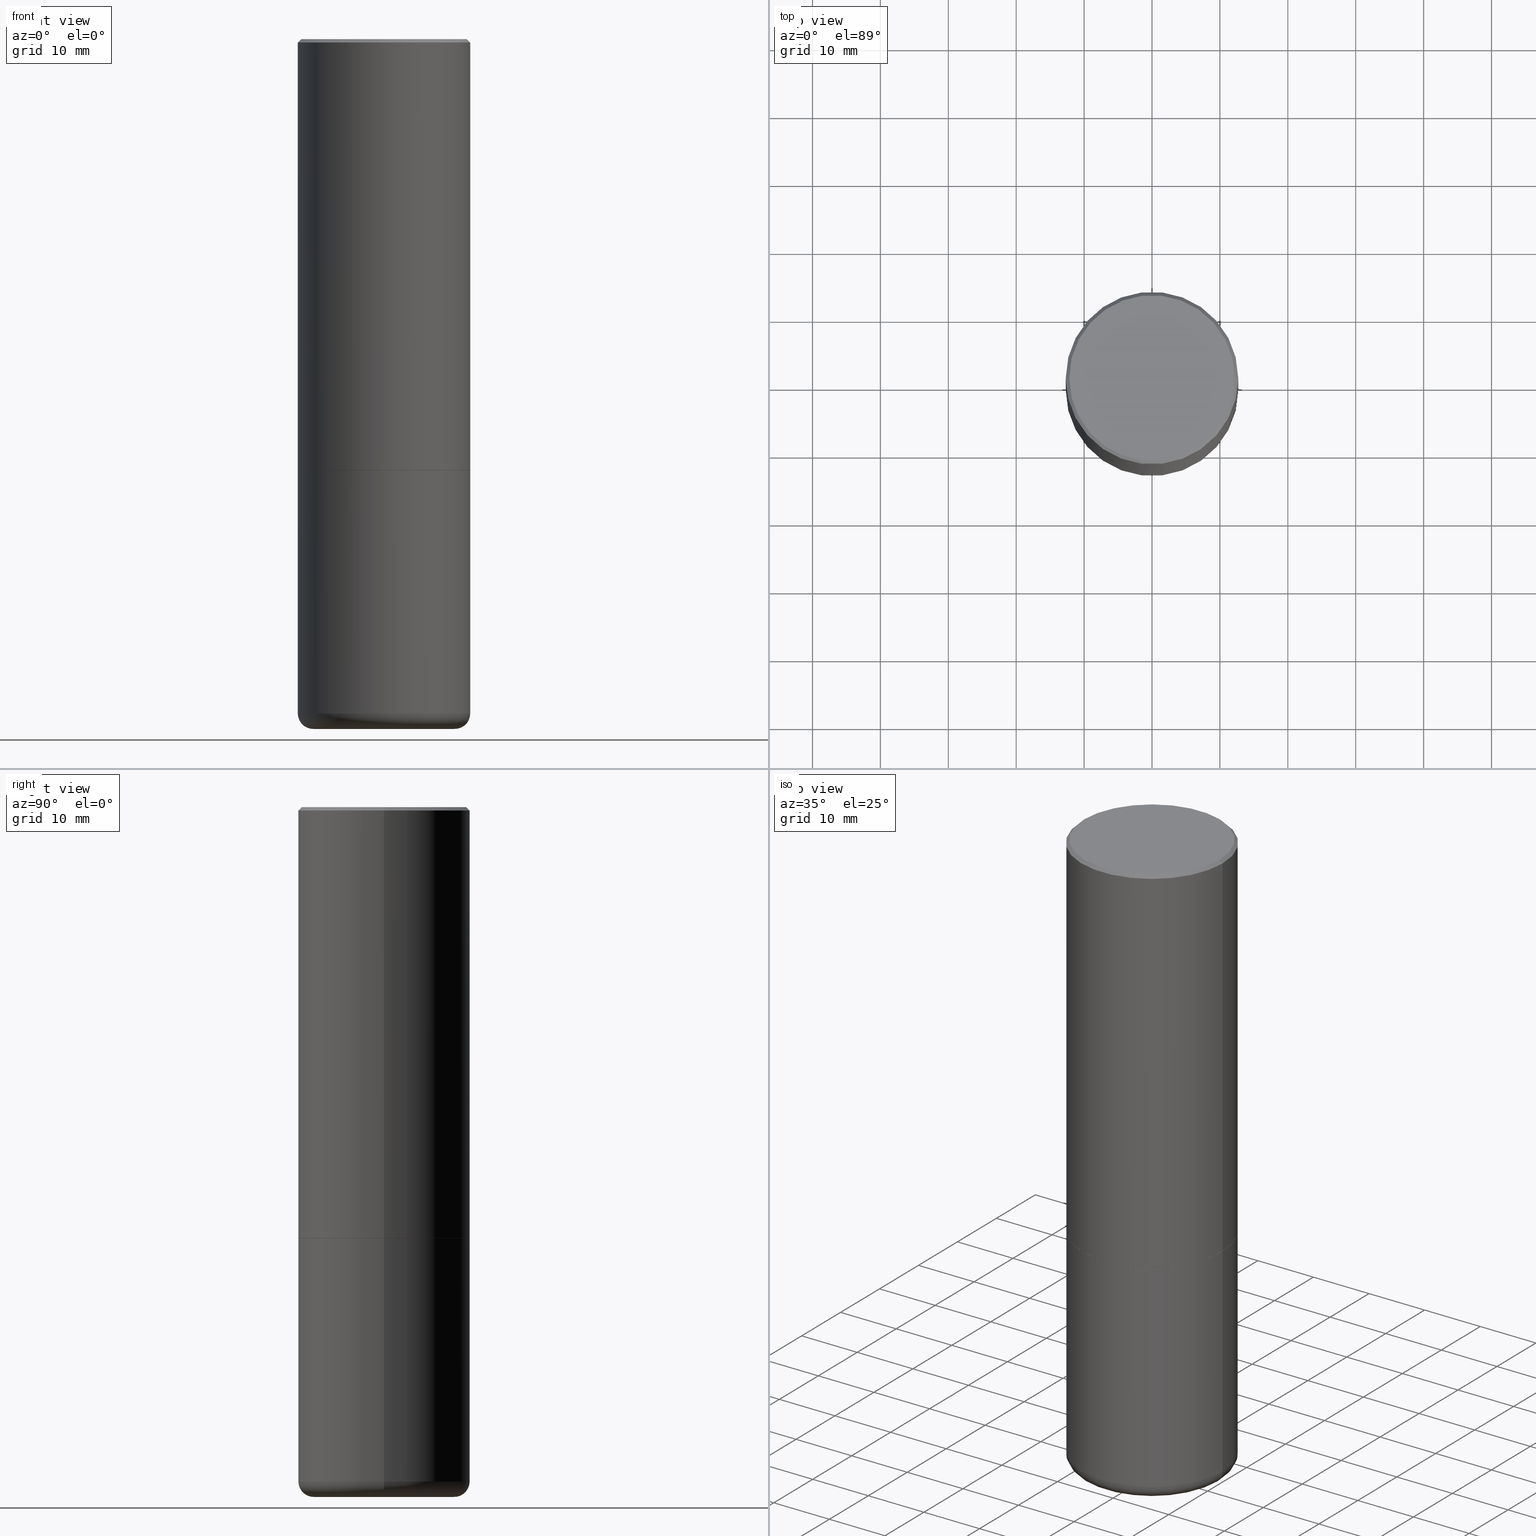
[diagram: canonical four-view strip — front | top / right | iso, engineering-drawing reading convention]
A machine part, canonical four-view strip (front | top / right | iso — engineering-drawing reading convention). The complete STEP part file that produces these views, byte-faithful:
ISO-10303-21;
HEADER;
FILE_DESCRIPTION (( 'STEP AP203' ),
    '1' );
FILE_NAME ('38112.STEP',
    '2023-03-22T20:19:09',
    ( '' ),
    ( '' ),
    'SwSTEP 2.0',
    'SolidWorks 2022',
    '' );
FILE_SCHEMA (( 'CONFIG_CONTROL_DESIGN' ));
ENDSEC;

DATA;
#1 = CARTESIAN_POINT ( 'NONE',  ( -0.5000000000000000000, -7.637699335114127230E-15, -2.500000000000000000 ) ) ;
#2 = AXIS2_PLACEMENT_3D ( 'NONE', #208, #34, #345 ) ;
#3 = AXIS2_PLACEMENT_3D ( 'NONE', #317, #252, #11 ) ;
#4 = CC_DESIGN_PERSON_AND_ORGANIZATION_ASSIGNMENT ( #370, #191, ( #315 ) ) ;
#5 = VERTEX_POINT ( 'NONE', #388 ) ;
#6 = FACE_OUTER_BOUND ( 'NONE', #436, .T. ) ;
#7 = APPROVAL_DATE_TIME ( #283, #353 ) ;
#8 = CARTESIAN_POINT ( 'NONE',  ( 9.562084660884571289E-29, -1.365212268072139138E-14, -3.910123341872087988 ) ) ;
#9 = DIRECTION ( 'NONE',  ( 1.000000000000000000, -6.982962677686269077E-15, 0.000000000000000000 ) ) ;
#10 = DIRECTION ( 'NONE',  ( 1.000000000000000000, -6.982962677686266711E-15, 0.000000000000000000 ) ) ;
#11 = DIRECTION ( 'NONE',  ( -1.000000000000000000, 6.982962677686266711E-15, 0.000000000000000000 ) ) ;
#12 = EDGE_CURVE ( 'NONE', #96, #136, #190, .T. ) ;
#13 = CARTESIAN_POINT ( 'NONE',  ( 6.111226546656657010E-29, -8.725211865769021935E-15, -2.499000000000000110 ) ) ;
#14 = CIRCLE ( 'NONE', #261, 0.4989999999999999991 ) ;
#15 = LINE ( 'NONE', #431, #335 ) ;
#16 = CC_DESIGN_APPROVAL ( #353, ( #230 ) ) ;
#17 = CARTESIAN_POINT ( 'NONE',  ( 4.890937612370278413E-31, -6.982962677686297772E-17, -0.02000000000000002123 ) ) ;
#18 =( NAMED_UNIT ( * ) SI_UNIT ( $, .STERADIAN. ) SOLID_ANGLE_UNIT ( ) );
#19 = DIRECTION ( 'NONE',  ( -2.445468806185136597E-29, 3.491481338843145583E-15, 1.000000000000000000 ) ) ;
#20 = FACE_OUTER_BOUND ( 'NONE', #248, .T. ) ;
#21 = ORIENTED_EDGE ( 'NONE', *, *, #428, .F. ) ;
#22 = DIRECTION ( 'NONE',  ( -2.445468806185136597E-29, 3.491481338843145583E-15, 1.000000000000000000 ) ) ;
#23 = DIRECTION ( 'NONE',  ( -1.000000000000000000, 7.105427357600990815E-15, 0.000000000000000000 ) ) ;
#24 = ORIENTED_EDGE ( 'NONE', *, *, #12, .T. ) ;
#25 = AXIS2_PLACEMENT_3D ( 'NONE', #374, #264, #407 ) ;
#26 = CONICAL_SURFACE ( 'NONE', #3, 0.4999999999999996669, 0.7853981633974472798 ) ;
#27 = LOCAL_TIME ( 16, 19, 9.000000000000000000, #56 ) ;
#28 = PERSON_AND_ORGANIZATION ( #237, #88 ) ;
#29 = ORIENTED_EDGE ( 'NONE', *, *, #234, .T. ) ;
#30 = CARTESIAN_POINT ( 'NONE',  ( -0.4999999999999996669, 3.421651712066268085E-15, -0.02000000000000002123 ) ) ;
#31 = ORIENTED_EDGE ( 'NONE', *, *, #58, .T. ) ;
#32 = DIRECTION ( 'NONE',  ( -1.000000000000000000, 6.982962677686265922E-15, -4.876176775795935793E-29 ) ) ;
#33 = APPROVAL_PERSON_ORGANIZATION ( #28, #353, #304 ) ;
#34 = DIRECTION ( 'NONE',  ( -2.445468806185136597E-29, 3.491481338843145583E-15, 1.000000000000000000 ) ) ;
#35 = ORIENTED_EDGE ( 'NONE', *, *, #299, .T. ) ;
#36 = LINE ( 'NONE', #78, #86 ) ;
#37 = DIRECTION ( 'NONE',  ( 2.445468806185136597E-29, -3.491481338843145583E-15, -1.000000000000000000 ) ) ;
#38 = ORIENTED_EDGE ( 'NONE', *, *, #177, .T. ) ;
#39 = PERSON_AND_ORGANIZATION_ROLE ( 'creator' ) ;
#40 = ORIENTED_EDGE ( 'NONE', *, *, #130, .T. ) ;
#41 = CARTESIAN_POINT ( 'NONE',  ( 9.562084660884571289E-29, -1.365212268072139138E-14, -3.910123341872087988 ) ) ;
#42 = ORIENTED_EDGE ( 'NONE', *, *, #114, .F. ) ;
#43 = FACE_OUTER_BOUND ( 'NONE', #420, .T. ) ;
#44 = CARTESIAN_POINT ( 'NONE',  ( 6.113672015462842613E-29, -8.728703347107866520E-15, -2.500000000000000444 ) ) ;
#45 = APPROVAL_PERSON_ORGANIZATION ( #396, #119, #53 ) ;
#46 = AXIS2_PLACEMENT_3D ( 'NONE', #401, #50, #23 ) ;
#47 = CARTESIAN_POINT ( 'NONE',  ( -0.4999999999999998335, 3.552713678800499746E-15, -2.459467545127452330E-29 ) ) ;
#48 = CIRCLE ( 'NONE', #290, 0.5000000000000000000 ) ;
#49 = ADVANCED_FACE ( 'NONE', ( #286 ), #26, .T. ) ;
#50 = DIRECTION ( 'NONE',  ( 7.105427357601001859E-15, 1.000000000000000000, -3.491481338843145583E-15 ) ) ;
#51 = DIRECTION ( 'NONE',  ( 1.000000000000000000, -6.982962677686266711E-15, 4.876176775795935793E-29 ) ) ;
#52 = FACE_OUTER_BOUND ( 'NONE', #55, .T. ) ;
#53 = APPROVAL_ROLE ( '' ) ;
#54 = AXIS2_PLACEMENT_3D ( 'NONE', #325, #360, #399 ) ;
#55 = EDGE_LOOP ( 'NONE', ( #288, #145 ) ) ;
#56 = COORDINATED_UNIVERSAL_TIME_OFFSET ( 5, 0, .BEHIND. ) ;
#57 = DIRECTION ( 'NONE',  ( -2.445468806185136597E-29, 3.491481338843145583E-15, 1.000000000000000000 ) ) ;
#58 = EDGE_CURVE ( 'NONE', #350, #138, #15, .T. ) ;
#59 = AXIS2_PLACEMENT_3D ( 'NONE', #225, #358, #366 ) ;
#60 = ORIENTED_EDGE ( 'NONE', *, *, #428, .T. ) ;
#61 = AXIS2_PLACEMENT_3D ( 'NONE', #174, #354, #255 ) ;
#62 = EDGE_CURVE ( 'NONE', #279, #141, #245, .T. ) ;
#63 = ADVANCED_BREP_SHAPE_REPRESENTATION ( '38112', ( #268, #424, #127 ), #369 ) ;
#64 = ORIENTED_EDGE ( 'NONE', *, *, #209, .T. ) ;
#65 = COORDINATED_UNIVERSAL_TIME_OFFSET ( 5, 0, .BEHIND. ) ;
#66 = CARTESIAN_POINT ( 'NONE',  ( 9.781875224740545266E-29, -1.396592535537258075E-14, -3.999999999999999556 ) ) ;
#67 = FACE_OUTER_BOUND ( 'NONE', #236, .T. ) ;
#68 = AXIS2_PLACEMENT_3D ( 'NONE', #17, #80, #149 ) ;
#69 = DIRECTION ( 'NONE',  ( -2.445468806185136597E-29, 3.491481338843145583E-15, 1.000000000000000000 ) ) ;
#70 = CLOSED_SHELL ( 'NONE', ( #143, #327, #340, #244, #267, #438, #146 ) ) ;
#71 = CIRCLE ( 'NONE', #300, 0.4052897639381357053 ) ;
#72 = PRODUCT_RELATED_PRODUCT_CATEGORY ( 'detail', '', ( #315 ) ) ;
#73 = CYLINDRICAL_SURFACE ( 'NONE', #2, 0.4999999999999998335 ) ;
#74 = DIRECTION ( 'NONE',  ( 1.000000000000000000, -6.982962677686266711E-15, 4.883557194083113462E-29 ) ) ;
#75 = EDGE_CURVE ( 'NONE', #138, #427, #301, .T. ) ;
#76 = ORIENTED_EDGE ( 'NONE', *, *, #103, .T. ) ;
#77 = EDGE_LOOP ( 'NONE', ( #291, #418, #228, #21 ) ) ;
#78 = CARTESIAN_POINT ( 'NONE',  ( 2.116410433118042117E-18, -1.389176511687253156E-14, -3.978759663505856636 ) ) ;
#79 = FACE_OUTER_BOUND ( 'NONE', #160, .T. ) ;
#80 = DIRECTION ( 'NONE',  ( -2.445468806185136597E-29, 3.491481338843145583E-15, 1.000000000000000000 ) ) ;
#81 = ADVANCED_FACE ( 'NONE', ( #52 ), #95, .F. ) ;
#82 = VERTEX_POINT ( 'NONE', #192 ) ;
#83 = COORDINATED_UNIVERSAL_TIME_OFFSET ( 5, 0, .BEHIND. ) ;
#84 = EDGE_CURVE ( 'NONE', #392, #427, #154, .T. ) ;
#85 = CYLINDRICAL_SURFACE ( 'NONE', #257, 0.5000000000000000000 ) ;
#86 = VECTOR ( 'NONE', #312, 39.37007874015748143 ) ;
#87 = DIRECTION ( 'NONE',  ( 0.7071067811864267805, -2.468850131080992517E-15, 0.7071067811866682540 ) ) ;
#88 = ORGANIZATION ( 'UNSPECIFIED', 'UNSPECIFIED', '' ) ;
#89 = PLANE ( 'NONE',  #59 ) ;
#90 = DIRECTION ( 'NONE',  ( -0.7071067811865467956, 2.468850131082249172E-15, -0.7071067811865482389 ) ) ;
#91 = ADVANCED_FACE ( 'NONE', ( #20 ), #363, .T. ) ;
#92 = PRODUCT_DEFINITION_SHAPE ( 'NONE', 'NONE',  #164 ) ;
#93 = VERTEX_POINT ( 'NONE', #199 ) ;
#94 = CARTESIAN_POINT ( 'NONE',  ( 0.000000000000000000, 0.000000000000000000, 0.000000000000000000 ) ) ;
#95 = PLANE ( 'NONE',  #259 ) ;
#96 = VERTEX_POINT ( 'NONE', #349 ) ;
#97 = CIRCLE ( 'NONE', #323, 0.5000000000000000000 ) ;
#98 = APPROVAL_DATE_TIME ( #404, #111 ) ;
#99 = PERSON_AND_ORGANIZATION_ROLE ( 'creator' ) ;
#100 = CLOSED_SHELL ( 'NONE', ( #91, #250, #227, #49, #256, #226, #81, #280 ) ) ;
#101 = CARTESIAN_POINT ( 'NONE',  ( 3.491481338843194098E-15, 0.4999999999999912292, -2.500000000000001776 ) ) ;
#102 = LINE ( 'NONE', #270, #405 ) ;
#103 = EDGE_CURVE ( 'NONE', #232, #376, #383, .T. ) ;
#104 = PLANE ( 'NONE',  #156 ) ;
#105 = CC_DESIGN_APPROVAL ( #119, ( #164 ) ) ;
#106 = DIRECTION ( 'NONE',  ( 1.000000000000000000, -6.982962677686265133E-15, 0.000000000000000000 ) ) ;
#107 = VECTOR ( 'NONE', #90, 39.37007874015748143 ) ;
#108 = CIRCLE ( 'NONE', #206, 0.4989999999999999991 ) ;
#109 = EDGE_LOOP ( 'NONE', ( #155, #359, #214, #254 ) ) ;
#110 = ORIENTED_EDGE ( 'NONE', *, *, #239, .T. ) ;
#111 = APPROVAL ( #262, 'UNSPECIFIED' ) ;
#112 = CARTESIAN_POINT ( 'NONE',  ( 0.4999999999999996669, -3.500078625662626318E-15, -0.02000000000000002123 ) ) ;
#113 = ORIENTED_EDGE ( 'NONE', *, *, #84, .F. ) ;
#114 = EDGE_CURVE ( 'NONE', #166, #93, #249, .T. ) ;
#115 = MECHANICAL_CONTEXT ( 'NONE', #389, 'mechanical' ) ;
#116 = CARTESIAN_POINT ( 'NONE',  ( 0.4099999999999999756, -1.651513737857276136E-14, -3.910123341872087988 ) ) ;
#117 = CARTESIAN_POINT ( 'NONE',  ( -3.131554243005659264E-46, 4.471029511141341874E-32, 1.280553747030123384E-17 ) ) ;
#118 = APPLICATION_PROTOCOL_DEFINITION ( 'international standard', 'config_control_design', 1994, #289 ) ;
#119 = APPROVAL ( #328, 'UNSPECIFIED' ) ;
#120 = CIRCLE ( 'NONE', #180, 0.4052897639381357053 ) ;
#121 = APPROVAL_DATE_TIME ( #150, #119 ) ;
#122 = DIRECTION ( 'NONE',  ( -2.445468806185136597E-29, 3.491481338843145583E-15, 1.000000000000000000 ) ) ;
#123 = CONICAL_SURFACE ( 'NONE', #61, 751.2258538476644389, 1.518436449235073482 ) ;
#124 = FACE_OUTER_BOUND ( 'NONE', #442, .T. ) ;
#125 = DIRECTION ( 'NONE',  ( -2.445468806185136597E-29, 3.491481338843145583E-15, 1.000000000000000000 ) ) ;
#126 = CALENDAR_DATE ( 2023, 22, 3 ) ;
#127 = AXIS2_PLACEMENT_3D ( 'NONE', #94, #320, #219 ) ;
#128 = DIRECTION ( 'NONE',  ( 1.000000000000000000, -6.982962677686269077E-15, 0.000000000000000000 ) ) ;
#129 = AXIS2_PLACEMENT_3D ( 'NONE', #380, #69, #347 ) ;
#130 = EDGE_CURVE ( 'NONE', #266, #96, #36, .T. ) ;
#131 = COORDINATED_UNIVERSAL_TIME_OFFSET ( 5, 0, .BEHIND. ) ;
#132 = ORIENTED_EDGE ( 'NONE', *, *, #75, .F. ) ;
#133 = CARTESIAN_POINT ( 'NONE',  ( 0.5000000000000000000, -3.491481338843133355E-15, 2.438088387897967896E-29 ) ) ;
#134 = CIRCLE ( 'NONE', #163, 0.5000000000000000000 ) ;
#135 = DIRECTION ( 'NONE',  ( -2.445468806185136877E-29, 3.491481338843145188E-15, 1.000000000000000000 ) ) ;
#136 = VERTEX_POINT ( 'NONE', #377 ) ;
#137 = FACE_OUTER_BOUND ( 'NONE', #240, .T. ) ;
#138 = VERTEX_POINT ( 'NONE', #308 ) ;
#139 = ORIENTED_EDGE ( 'NONE', *, *, #253, .F. ) ;
#140 = CC_DESIGN_APPROVAL ( #111, ( #362 ) ) ;
#141 = VERTEX_POINT ( 'NONE', #275 ) ;
#142 = ORIENTED_EDGE ( 'NONE', *, *, #299, .F. ) ;
#143 = ADVANCED_FACE ( 'NONE', ( #67 ), #123, .F. ) ;
#144 = DIRECTION ( 'NONE',  ( -2.445468806185136597E-29, 3.491481338843145583E-15, 1.000000000000000000 ) ) ;
#145 = ORIENTED_EDGE ( 'NONE', *, *, #417, .F. ) ;
#146 = ADVANCED_FACE ( 'NONE', ( #43 ), #430, .F. ) ;
#147 = AXIS2_PLACEMENT_3D ( 'NONE', #400, #125, #406 ) ;
#148 = TOROIDAL_SURFACE ( 'NONE', #322, 0.4099999999999999756, 0.08999999999999998279 ) ;
#149 = DIRECTION ( 'NONE',  ( 1.000000000000000000, -6.982962677686266711E-15, 0.000000000000000000 ) ) ;
#150 = DATE_AND_TIME ( #221, #165 ) ;
#151 = CARTESIAN_POINT ( 'NONE',  ( 6.113672015462842613E-29, -8.728703347107866520E-15, -2.500000000000000444 ) ) ;
#152 = AXIS2_PLACEMENT_3D ( 'NONE', #151, #218, #329 ) ;
#153 = PERSON_AND_ORGANIZATION_ROLE ( 'classification_officer' ) ;
#154 = LINE ( 'NONE', #429, #107 ) ;
#155 = ORIENTED_EDGE ( 'NONE', *, *, #209, .F. ) ;
#156 = AXIS2_PLACEMENT_3D ( 'NONE', #101, #378, #32 ) ;
#157 = VECTOR ( 'NONE', #135, 39.37007874015748143 ) ;
#158 = APPROVAL_STATUS ( 'not_yet_approved' ) ;
#159 = CC_DESIGN_DATE_AND_TIME_ASSIGNMENT ( #337, #201, ( #362 ) ) ;
#160 = EDGE_LOOP ( 'NONE', ( #178, #64, #385, #113 ) ) ;
#161 = CARTESIAN_POINT ( 'NONE',  ( 9.781875224740545266E-29, -1.396592535537258075E-14, -3.999999999999999556 ) ) ;
#162 = DIRECTION ( 'NONE',  ( -0.7071067811864267805, 7.493145998869918709E-15, 0.7071067811866682540 ) ) ;
#163 = AXIS2_PLACEMENT_3D ( 'NONE', #41, #316, #10 ) ;
#164 = PRODUCT_DEFINITION ( 'UNKNOWN', '', #230, #379 ) ;
#165 = LOCAL_TIME ( 16, 19, 9.000000000000000000, #83 ) ;
#166 = VERTEX_POINT ( 'NONE', #397 ) ;
#167 = DIRECTION ( 'NONE',  ( -2.445468806185136597E-29, 3.491481338843145583E-15, 1.000000000000000000 ) ) ;
#168 = CALENDAR_DATE ( 2023, 22, 3 ) ;
#169 = EDGE_CURVE ( 'NONE', #136, #141, #134, .T. ) ;
#170 = ORIENTED_EDGE ( 'NONE', *, *, #12, .F. ) ;
#171 = CARTESIAN_POINT ( 'NONE',  ( -2.116410432923443459E-18, -1.389176511687253156E-14, -3.978759663505856636 ) ) ;
#172 = VECTOR ( 'NONE', #87, 39.37007874015748143 ) ;
#173 = ORIENTED_EDGE ( 'NONE', *, *, #393, .F. ) ;
#174 = CARTESIAN_POINT ( 'NONE',  ( 1.060082321005189927E-27, -1.513516603469176358E-13, -43.34883840366333629 ) ) ;
#175 = CARTESIAN_POINT ( 'NONE',  ( 9.562084660884571289E-29, -1.365212268072139138E-14, -3.910123341872087988 ) ) ;
#176 = EDGE_LOOP ( 'NONE', ( #204, #351, #24, #348 ) ) ;
#177 = EDGE_CURVE ( 'NONE', #82, #350, #318, .T. ) ;
#178 = ORIENTED_EDGE ( 'NONE', *, *, #408, .F. ) ;
#179 = CARTESIAN_POINT ( 'NONE',  ( 0.4989999999999999991, -1.221320172327331386E-14, -2.500000000000000444 ) ) ;
#180 = AXIS2_PLACEMENT_3D ( 'NONE', #161, #57, #128 ) ;
#181 = AXIS2_PLACEMENT_3D ( 'NONE', #117, #19, #394 ) ;
#182 = DIRECTION ( 'NONE',  ( 1.000000000000000000, -6.982962677686265922E-15, 4.876176775795935793E-29 ) ) ;
#183 = DIRECTION ( 'NONE',  ( -2.445468806185136597E-29, 3.491481338843145583E-15, 1.000000000000000000 ) ) ;
#184 =( CONVERSION_BASED_UNIT ( 'INCH', #294 ) LENGTH_UNIT ( ) NAMED_UNIT ( #330 ) );
#185 = DIRECTION ( 'NONE',  ( -2.445468806185136877E-29, 3.491481338843145188E-15, 1.000000000000000000 ) ) ;
#186 = PERSON_AND_ORGANIZATION ( #237, #88 ) ;
#187 = PERSON_AND_ORGANIZATION_ROLE ( 'design_supplier' ) ;
#188 = APPLICATION_PROTOCOL_DEFINITION ( 'international standard', 'config_control_design', 1994, #389 ) ;
#189 = CARTESIAN_POINT ( 'NONE',  ( 0.5000000000000000000, -1.221669320461215371E-14, -2.499000000000000110 ) ) ;
#190 = CIRCLE ( 'NONE', #355, 0.08999999999999999667 ) ;
#191 = PERSON_AND_ORGANIZATION_ROLE ( 'design_owner' ) ;
#192 = CARTESIAN_POINT ( 'NONE',  ( 0.4989999999999999991, -1.221320172327331386E-14, -2.500000000000000444 ) ) ;
#193 = SHAPE_DEFINITION_REPRESENTATION ( #92, #63 ) ;
#194 = CALENDAR_DATE ( 2023, 22, 3 ) ;
#195 = EDGE_CURVE ( 'NONE', #93, #427, #222, .T. ) ;
#196 = CIRCLE ( 'NONE', #68, 0.4999999999999996669 ) ;
#197 = ORIENTED_EDGE ( 'NONE', *, *, #273, .T. ) ;
#198 = CARTESIAN_POINT ( 'NONE',  ( -0.4799999999999996492, 3.386736898677836830E-15, 1.280553747027767124E-17 ) ) ;
#199 = CARTESIAN_POINT ( 'NONE',  ( -0.5000000000000000000, -8.448070674724403070E-16, -2.499000000000000110 ) ) ;
#200 = EDGE_LOOP ( 'NONE', ( #35, #251, #132, #311 ) ) ;
#201 = DATE_TIME_ROLE ( 'classification_date' ) ;
#202 = DIRECTION ( 'NONE',  ( 1.000000000000000000, -6.982962677686269077E-15, 0.000000000000000000 ) ) ;
#203 = CONICAL_SURFACE ( 'NONE', #381, 0.4999999999999996669, 0.7853981633974472798 ) ;
#204 = ORIENTED_EDGE ( 'NONE', *, *, #62, .F. ) ;
#205 = ORIENTED_EDGE ( 'NONE', *, *, #390, .F. ) ;
#206 = AXIS2_PLACEMENT_3D ( 'NONE', #306, #439, #233 ) ;
#207 = DIRECTION ( 'NONE',  ( 1.000000000000000000, -6.982962677686269077E-15, 0.000000000000000000 ) ) ;
#208 = CARTESIAN_POINT ( 'NONE',  ( 0.000000000000000000, 0.000000000000000000, 0.000000000000000000 ) ) ;
#209 = EDGE_CURVE ( 'NONE', #5, #138, #421, .T. ) ;
#210 = ORIENTED_EDGE ( 'NONE', *, *, #408, .T. ) ;
#211 = ORIENTED_EDGE ( 'NONE', *, *, #231, .T. ) ;
#212 = DIRECTION ( 'NONE',  ( 1.000000000000000000, -6.982962677686269077E-15, 0.000000000000000000 ) ) ;
#213 = CARTESIAN_POINT ( 'NONE',  ( 6.113672015462842613E-29, -8.728703347107864943E-15, -2.500000000000000000 ) ) ;
#214 = ORIENTED_EDGE ( 'NONE', *, *, #84, .T. ) ;
#215 = VECTOR ( 'NONE', #295, 39.37007874015748143 ) ;
#216 = ORIENTED_EDGE ( 'NONE', *, *, #417, .T. ) ;
#217 = CC_DESIGN_PERSON_AND_ORGANIZATION_ASSIGNMENT ( #260, #153, ( #362 ) ) ;
#218 = DIRECTION ( 'NONE',  ( -2.445468806185136597E-29, 3.491481338843145583E-15, 1.000000000000000000 ) ) ;
#219 = DIRECTION ( 'NONE',  ( 1.000000000000000000, 0.000000000000000000, 0.000000000000000000 ) ) ;
#220 = EDGE_LOOP ( 'NONE', ( #42, #216, #38, #414 ) ) ;
#221 = CALENDAR_DATE ( 2023, 22, 3 ) ;
#222 = LINE ( 'NONE', #47, #410 ) ;
#223 = CONICAL_SURFACE ( 'NONE', #384, 0.4989999999999999991, 0.7853981633972775267 ) ;
#224 = LOCAL_TIME ( 16, 19, 9.000000000000000000, #334 ) ;
#225 = CARTESIAN_POINT ( 'NONE',  ( 3.351822085289405181E-15, 0.4799999999999996492, -1.669508273909558064E-15 ) ) ;
#226 = ADVANCED_FACE ( 'NONE', ( #338 ), #223, .T. ) ;
#227 = ADVANCED_FACE ( 'NONE', ( #79 ), #203, .T. ) ;
#228 = ORIENTED_EDGE ( 'NONE', *, *, #231, .F. ) ;
#229 = CARTESIAN_POINT ( 'NONE',  ( 6.113672015462842613E-29, -8.728703347107864943E-15, -2.500000000000000000 ) ) ;
#230 = PRODUCT_DEFINITION_FORMATION_WITH_SPECIFIED_SOURCE ( 'ANY', '', #315, .NOT_KNOWN. ) ;
#231 = EDGE_CURVE ( 'NONE', #376, #232, #425, .T. ) ;
#232 = VERTEX_POINT ( 'NONE', #1 ) ;
#233 = DIRECTION ( 'NONE',  ( 1.000000000000000000, -6.982962677686266711E-15, 0.000000000000000000 ) ) ;
#234 = EDGE_CURVE ( 'NONE', #266, #279, #352, .T. ) ;
#235 = CARTESIAN_POINT ( 'NONE',  ( 6.113672015462842613E-29, -8.728703347107866520E-15, -2.500000000000000444 ) ) ;
#236 = EDGE_LOOP ( 'NONE', ( #343, #40, #173 ) ) ;
#237 = PERSON ( 'UNSPECIFIED', 'UNSPECIFIED', 'UNSPECIFIED', ('UNSPECIFIED'), ('UNSPECIFIED'), ('UNSPECIFIED') ) ;
#238 = FACE_OUTER_BOUND ( 'NONE', #200, .T. ) ;
#239 = EDGE_CURVE ( 'NONE', #93, #350, #48, .T. ) ;
#240 = EDGE_LOOP ( 'NONE', ( #371, #110, #31, #395 ) ) ;
#241 = CARTESIAN_POINT ( 'NONE',  ( 6.113672015462842613E-29, -8.728703347107864943E-15, -2.500000000000000000 ) ) ;
#242 = CYLINDRICAL_SURFACE ( 'NONE', #129, 0.4999999999999998335 ) ;
#243 = UNCERTAINTY_MEASURE_WITH_UNIT (LENGTH_MEASURE( 1.000000000000000082E-05 ), #184, 'distance_accuracy_value', 'NONE');
#244 = ADVANCED_FACE ( 'NONE', ( #409 ), #104, .F. ) ;
#245 = CIRCLE ( 'NONE', #46, 0.08999999999999999667 ) ;
#246 = CIRCLE ( 'NONE', #25, 0.5000000000000000000 ) ;
#247 = CARTESIAN_POINT ( 'NONE',  ( 4.890937612370278413E-31, -6.982962677686297772E-17, -0.02000000000000002123 ) ) ;
#248 = EDGE_LOOP ( 'NONE', ( #197, #391, #142, #423 ) ) ;
#249 = LINE ( 'NONE', #387, #368 ) ;
#250 = ADVANCED_FACE ( 'NONE', ( #238 ), #73, .T. ) ;
#251 = ORIENTED_EDGE ( 'NONE', *, *, #195, .T. ) ;
#252 = DIRECTION ( 'NONE',  ( 2.445468806185136597E-29, -3.491481338843145583E-15, -1.000000000000000000 ) ) ;
#253 = EDGE_CURVE ( 'NONE', #96, #279, #71, .T. ) ;
#254 = ORIENTED_EDGE ( 'NONE', *, *, #297, .T. ) ;
#255 = DIRECTION ( 'NONE',  ( -1.000000000000000000, 6.982962677686265922E-15, 0.000000000000000000 ) ) ;
#256 = ADVANCED_FACE ( 'NONE', ( #137 ), #242, .T. ) ;
#257 = AXIS2_PLACEMENT_3D ( 'NONE', #326, #292, #296 ) ;
#258 = DIRECTION ( 'NONE',  ( 1.000000000000000000, -6.982962677686266711E-15, 0.000000000000000000 ) ) ;
#259 = AXIS2_PLACEMENT_3D ( 'NONE', #229, #293, #182 ) ;
#260 = PERSON_AND_ORGANIZATION ( #237, #88 ) ;
#261 = AXIS2_PLACEMENT_3D ( 'NONE', #44, #319, #258 ) ;
#262 = APPROVAL_STATUS ( 'not_yet_approved' ) ;
#263 = CC_DESIGN_PERSON_AND_ORGANIZATION_ASSIGNMENT ( #434, #187, ( #230 ) ) ;
#264 = DIRECTION ( 'NONE',  ( -2.445468806185136597E-29, 3.491481338843145583E-15, 1.000000000000000000 ) ) ;
#265 = AXIS2_PLACEMENT_3D ( 'NONE', #213, #276, #207 ) ;
#266 = VERTEX_POINT ( 'NONE', #419 ) ;
#267 = ADVANCED_FACE ( 'NONE', ( #6 ), #85, .T. ) ;
#268 = MANIFOLD_SOLID_BREP ( 'Body-Move/Copy2[1]', #70 ) ;
#269 = DATE_TIME_ROLE ( 'creation_date' ) ;
#270 = CARTESIAN_POINT ( 'NONE',  ( -0.5000000000000000000, 3.552713678800500929E-15, -2.459467545127452891E-29 ) ) ;
#271 = ORIENTED_EDGE ( 'NONE', *, *, #62, .T. ) ;
#272 = FACE_OUTER_BOUND ( 'NONE', #176, .T. ) ;
#273 = EDGE_CURVE ( 'NONE', #82, #166, #14, .T. ) ;
#274 = CALENDAR_DATE ( 2023, 22, 3 ) ;
#275 = CARTESIAN_POINT ( 'NONE',  ( -0.5000000000000000000, -7.637699335114127230E-15, -3.910123341872087988 ) ) ;
#276 = DIRECTION ( 'NONE',  ( -2.445468806185136597E-29, 3.491481338843145583E-15, 1.000000000000000000 ) ) ;
#277 = DIRECTION ( 'NONE',  ( 1.000000000000000000, -6.982962677686266711E-15, 0.000000000000000000 ) ) ;
#278 = AXIS2_PLACEMENT_3D ( 'NONE', #8, #284, #74 ) ;
#279 = VERTEX_POINT ( 'NONE', #356 ) ;
#280 = ADVANCED_FACE ( 'NONE', ( #324 ), #89, .F. ) ;
#281 = AXIS2_PLACEMENT_3D ( 'NONE', #241, #167, #212 ) ;
#282 = APPROVAL_PERSON_ORGANIZATION ( #298, #111, #432 ) ;
#283 = DATE_AND_TIME ( #168, #415 ) ;
#284 = DIRECTION ( 'NONE',  ( -2.445468806185136597E-29, 3.491481338843145583E-15, 1.000000000000000000 ) ) ;
#285 = PERSON_AND_ORGANIZATION ( #237, #88 ) ;
#286 = FACE_OUTER_BOUND ( 'NONE', #109, .T. ) ;
#287 = DIRECTION ( 'NONE',  ( -2.445468806185136877E-29, 3.491481338843145188E-15, 1.000000000000000000 ) ) ;
#288 = ORIENTED_EDGE ( 'NONE', *, *, #273, .F. ) ;
#289 = APPLICATION_CONTEXT ( 'configuration controlled 3d designs of mechanical parts and assemblies' ) ;
#290 = AXIS2_PLACEMENT_3D ( 'NONE', #412, #313, #106 ) ;
#291 = ORIENTED_EDGE ( 'NONE', *, *, #169, .T. ) ;
#292 = DIRECTION ( 'NONE',  ( -2.445468806185136597E-29, 3.491481338843145583E-15, 1.000000000000000000 ) ) ;
#293 = DIRECTION ( 'NONE',  ( -2.438088387897960049E-29, 3.491481338843145188E-15, 1.000000000000000000 ) ) ;
#294 = LENGTH_MEASURE_WITH_UNIT ( LENGTH_MEASURE( 0.02539999999999999897 ), #382 );
#295 = DIRECTION ( 'NONE',  ( 0.7071067811865467956, -7.319954787623254468E-15, -0.7071067811865482389 ) ) ;
#296 = DIRECTION ( 'NONE',  ( 1.000000000000000000, -6.982962677686266711E-15, 4.876176775795935793E-29 ) ) ;
#297 = EDGE_CURVE ( 'NONE', #427, #138, #196, .T. ) ;
#298 = PERSON_AND_ORGANIZATION ( #237, #88 ) ;
#299 = EDGE_CURVE ( 'NONE', #350, #93, #97, .T. ) ;
#300 = AXIS2_PLACEMENT_3D ( 'NONE', #66, #441, #202 ) ;
#301 = CIRCLE ( 'NONE', #147, 0.4999999999999996669 ) ;
#302 = AXIS2_PLACEMENT_3D ( 'NONE', #339, #307, #344 ) ;
#303 = EDGE_CURVE ( 'NONE', #392, #5, #346, .T. ) ;
#304 = APPROVAL_ROLE ( '' ) ;
#305 = ORIENTED_EDGE ( 'NONE', *, *, #303, .T. ) ;
#306 = CARTESIAN_POINT ( 'NONE',  ( 6.113672015462842613E-29, -8.728703347107866520E-15, -2.500000000000000444 ) ) ;
#307 = DIRECTION ( 'NONE',  ( -2.445468806185136597E-29, 3.491481338843145583E-15, 1.000000000000000000 ) ) ;
#308 = CARTESIAN_POINT ( 'NONE',  ( 0.4999999999999996669, -3.500078625662626318E-15, -0.02000000000000002123 ) ) ;
#309 = DIRECTION ( 'NONE',  ( -0.9986295347545742773, 6.790662755453666100E-15, -0.05233595624293709697 ) ) ;
#310 = AXIS2_PLACEMENT_3D ( 'NONE', #365, #122, #51 ) ;
#311 = ORIENTED_EDGE ( 'NONE', *, *, #58, .F. ) ;
#312 = DIRECTION ( 'NONE',  ( 0.9986295347545742773, -7.033825938271998700E-15, -0.05233595624293709697 ) ) ;
#313 = DIRECTION ( 'NONE',  ( -2.445468806185136597E-29, 3.491481338843145583E-15, 1.000000000000000000 ) ) ;
#314 = DIRECTION ( 'NONE',  ( -6.982962677686266711E-15, -1.000000000000000000, 3.491481338843145583E-15 ) ) ;
#315 = PRODUCT ( '38112', '38112', '', ( #115 ) ) ;
#316 = DIRECTION ( 'NONE',  ( -2.445468806185136597E-29, 3.491481338843145583E-15, 1.000000000000000000 ) ) ;
#317 = CARTESIAN_POINT ( 'NONE',  ( 4.890937612370278413E-31, -6.982962677686297772E-17, -0.02000000000000002123 ) ) ;
#318 = LINE ( 'NONE', #179, #172 ) ;
#319 = DIRECTION ( 'NONE',  ( -2.445468806185136597E-29, 3.491481338843145583E-15, 1.000000000000000000 ) ) ;
#320 = DIRECTION ( 'NONE',  ( 0.000000000000000000, 0.000000000000000000, 1.000000000000000000 ) ) ;
#321 = EDGE_LOOP ( 'NONE', ( #305, #210 ) ) ;
#322 = AXIS2_PLACEMENT_3D ( 'NONE', #175, #144, #422 ) ;
#323 = AXIS2_PLACEMENT_3D ( 'NONE', #13, #183, #364 ) ;
#324 = FACE_OUTER_BOUND ( 'NONE', #321, .T. ) ;
#325 = CARTESIAN_POINT ( 'NONE',  ( 1.060082321005189927E-27, -1.513516603469176358E-13, -43.34883840366333629 ) ) ;
#326 = CARTESIAN_POINT ( 'NONE',  ( 0.000000000000000000, 0.000000000000000000, 0.000000000000000000 ) ) ;
#327 = ADVANCED_FACE ( 'NONE', ( #124 ), #148, .T. ) ;
#328 = APPROVAL_STATUS ( 'not_yet_approved' ) ;
#329 = DIRECTION ( 'NONE',  ( 1.000000000000000000, -6.982962677686266711E-15, 0.000000000000000000 ) ) ;
#330 = DIMENSIONAL_EXPONENTS ( 1.000000000000000000, 0.000000000000000000, 0.000000000000000000, 0.000000000000000000, 0.000000000000000000, 0.000000000000000000, 0.000000000000000000 ) ;
#331 = FACE_OUTER_BOUND ( 'NONE', #77, .T. ) ;
#332 =( NAMED_UNIT ( * ) PLANE_ANGLE_UNIT ( ) SI_UNIT ( $, .RADIAN. ) );
#333 = CARTESIAN_POINT ( 'NONE',  ( 0.5000000000000000000, -1.222018468595099830E-14, -2.500000000000000000 ) ) ;
#334 = COORDINATED_UNIVERSAL_TIME_OFFSET ( 5, 0, .BEHIND. ) ;
#335 = VECTOR ( 'NONE', #185, 39.37007874015748143 ) ;
#336 = SECURITY_CLASSIFICATION_LEVEL ( 'unclassified' ) ;
#337 = DATE_AND_TIME ( #274, #224 ) ;
#338 = FACE_OUTER_BOUND ( 'NONE', #220, .T. ) ;
#339 = CARTESIAN_POINT ( 'NONE',  ( -3.131554243005659264E-46, 4.471029511141341874E-32, 1.280553747030123384E-17 ) ) ;
#340 = ADVANCED_FACE ( 'NONE', ( #331 ), #426, .T. ) ;
#341 = DATE_AND_TIME ( #194, #27 ) ;
#342 = LOCAL_TIME ( 16, 19, 9.000000000000000000, #65 ) ;
#343 = ORIENTED_EDGE ( 'NONE', *, *, #234, .F. ) ;
#344 = DIRECTION ( 'NONE',  ( 1.000000000000000000, -6.982962677686267499E-15, 4.876036955247132767E-29 ) ) ;
#345 = DIRECTION ( 'NONE',  ( 1.000000000000000000, -6.982962677686267499E-15, 4.876176775795936353E-29 ) ) ;
#346 = CIRCLE ( 'NONE', #181, 0.4799999999999996492 ) ;
#347 = DIRECTION ( 'NONE',  ( 1.000000000000000000, -6.982962677686267499E-15, 4.876176775795936353E-29 ) ) ;
#348 = ORIENTED_EDGE ( 'NONE', *, *, #413, .F. ) ;
#349 = CARTESIAN_POINT ( 'NONE',  ( 0.4052897639381357053, -1.679604865060086105E-14, -3.999999999999999556 ) ) ;
#350 = VERTEX_POINT ( 'NONE', #189 ) ;
#351 = ORIENTED_EDGE ( 'NONE', *, *, #393, .T. ) ;
#352 = LINE ( 'NONE', #171, #373 ) ;
#353 = APPROVAL ( #158, 'UNSPECIFIED' ) ;
#354 = DIRECTION ( 'NONE',  ( 2.445468806185136597E-29, -3.491481338843145583E-15, -1.000000000000000000 ) ) ;
#355 = AXIS2_PLACEMENT_3D ( 'NONE', #116, #314, #9 ) ;
#356 = CARTESIAN_POINT ( 'NONE',  ( -0.4052897639381357053, -1.059278869042589352E-14, -3.999999999999999556 ) ) ;
#357 = ORIENTED_EDGE ( 'NONE', *, *, #169, .F. ) ;
#358 = DIRECTION ( 'NONE',  ( 2.438088387897960049E-29, -3.491481338843145188E-15, -1.000000000000000000 ) ) ;
#359 = ORIENTED_EDGE ( 'NONE', *, *, #303, .F. ) ;
#360 = DIRECTION ( 'NONE',  ( 2.445468806185136597E-29, -3.491481338843145583E-15, -1.000000000000000000 ) ) ;
#361 = ORIENTED_EDGE ( 'NONE', *, *, #253, .T. ) ;
#362 = SECURITY_CLASSIFICATION ( '', '', #336 ) ;
#363 = CONICAL_SURFACE ( 'NONE', #152, 0.4989999999999999991, 0.7853981633972775267 ) ;
#364 = DIRECTION ( 'NONE',  ( 1.000000000000000000, -6.982962677686265133E-15, 0.000000000000000000 ) ) ;
#365 = CARTESIAN_POINT ( 'NONE',  ( 0.000000000000000000, 0.000000000000000000, 0.000000000000000000 ) ) ;
#366 = DIRECTION ( 'NONE',  ( -1.000000000000000000, 6.982962677686265922E-15, -4.876176775795935793E-29 ) ) ;
#367 = CC_DESIGN_DATE_AND_TIME_ASSIGNMENT ( #341, #269, ( #164 ) ) ;
#368 = VECTOR ( 'NONE', #162, 39.37007874015748143 ) ;
#369 =( GEOMETRIC_REPRESENTATION_CONTEXT ( 3 ) GLOBAL_UNCERTAINTY_ASSIGNED_CONTEXT ( ( #243 ) ) GLOBAL_UNIT_ASSIGNED_CONTEXT ( ( #184, #332, #18 ) ) REPRESENTATION_CONTEXT ( 'NONE', 'WORKASPACE' ) );
#370 = PERSON_AND_ORGANIZATION ( #237, #88 ) ;
#371 = ORIENTED_EDGE ( 'NONE', *, *, #195, .F. ) ;
#372 = EDGE_LOOP ( 'NONE', ( #211, #76 ) ) ;
#373 = VECTOR ( 'NONE', #309, 39.37007874015748143 ) ;
#374 = CARTESIAN_POINT ( 'NONE',  ( 9.562084660884571289E-29, -1.365212268072139138E-14, -3.910123341872087988 ) ) ;
#375 = DIRECTION ( 'NONE',  ( -2.445468806185136877E-29, 3.491481338843145188E-15, 1.000000000000000000 ) ) ;
#376 = VERTEX_POINT ( 'NONE', #333 ) ;
#377 = CARTESIAN_POINT ( 'NONE',  ( 0.5000000000000000000, -1.714360401956452473E-14, -3.910123341872087988 ) ) ;
#378 = DIRECTION ( 'NONE',  ( 2.438088387897960049E-29, -3.491481338843145188E-15, -1.000000000000000000 ) ) ;
#379 = DESIGN_CONTEXT ( 'detailed design', #289, 'design' ) ;
#380 = CARTESIAN_POINT ( 'NONE',  ( 0.000000000000000000, 0.000000000000000000, 0.000000000000000000 ) ) ;
#381 = AXIS2_PLACEMENT_3D ( 'NONE', #247, #37, #440 ) ;
#382 =( LENGTH_UNIT ( ) NAMED_UNIT ( * ) SI_UNIT ( $, .METRE. ) );
#383 = CIRCLE ( 'NONE', #281, 0.5000000000000000000 ) ;
#384 = AXIS2_PLACEMENT_3D ( 'NONE', #235, #22, #277 ) ;
#385 = ORIENTED_EDGE ( 'NONE', *, *, #75, .T. ) ;
#386 = ORIENTED_EDGE ( 'NONE', *, *, #413, .T. ) ;
#387 = CARTESIAN_POINT ( 'NONE',  ( -0.4989999999999999991, -5.183095095664967388E-15, -2.500000000000000444 ) ) ;
#388 = CARTESIAN_POINT ( 'NONE',  ( 0.4799999999999996492, -3.396558832296479338E-15, 1.280553747032483033E-17 ) ) ;
#389 = APPLICATION_CONTEXT ( 'configuration controlled 3d designs of mechanical parts and assemblies' ) ;
#390 = EDGE_CURVE ( 'NONE', #141, #232, #102, .T. ) ;
#391 = ORIENTED_EDGE ( 'NONE', *, *, #114, .T. ) ;
#392 = VERTEX_POINT ( 'NONE', #198 ) ;
#393 = EDGE_CURVE ( 'NONE', #279, #96, #120, .T. ) ;
#394 = DIRECTION ( 'NONE',  ( 1.000000000000000000, -6.982962677686267499E-15, 4.876036955247132767E-29 ) ) ;
#395 = ORIENTED_EDGE ( 'NONE', *, *, #297, .F. ) ;
#396 = PERSON_AND_ORGANIZATION ( #237, #88 ) ;
#397 = CARTESIAN_POINT ( 'NONE',  ( -0.4989999999999999991, -5.177796641316744197E-15, -2.500000000000000444 ) ) ;
#398 = CC_DESIGN_PERSON_AND_ORGANIZATION_ASSIGNMENT ( #285, #39, ( #230 ) ) ;
#399 = DIRECTION ( 'NONE',  ( -1.000000000000000000, 6.982962677686265922E-15, 0.000000000000000000 ) ) ;
#400 = CARTESIAN_POINT ( 'NONE',  ( 4.890937612370278413E-31, -6.982962677686297772E-17, -0.02000000000000002123 ) ) ;
#401 = CARTESIAN_POINT ( 'NONE',  ( -0.4099999999999999756, -1.073889746410498118E-14, -3.910123341872087988 ) ) ;
#402 = ORIENTED_EDGE ( 'NONE', *, *, #103, .F. ) ;
#403 = CC_DESIGN_SECURITY_CLASSIFICATION ( #362, ( #230 ) ) ;
#404 = DATE_AND_TIME ( #126, #342 ) ;
#405 = VECTOR ( 'NONE', #375, 39.37007874015748143 ) ;
#406 = DIRECTION ( 'NONE',  ( 1.000000000000000000, -6.982962677686266711E-15, 0.000000000000000000 ) ) ;
#407 = DIRECTION ( 'NONE',  ( 1.000000000000000000, -6.982962677686266711E-15, 0.000000000000000000 ) ) ;
#408 = EDGE_CURVE ( 'NONE', #5, #392, #435, .T. ) ;
#409 = FACE_OUTER_BOUND ( 'NONE', #372, .T. ) ;
#410 = VECTOR ( 'NONE', #287, 39.37007874015748143 ) ;
#411 = CC_DESIGN_PERSON_AND_ORGANIZATION_ASSIGNMENT ( #186, #99, ( #164 ) ) ;
#412 = CARTESIAN_POINT ( 'NONE',  ( 6.111226546656657010E-29, -8.725211865769021935E-15, -2.499000000000000110 ) ) ;
#413 = EDGE_CURVE ( 'NONE', #141, #136, #246, .T. ) ;
#414 = ORIENTED_EDGE ( 'NONE', *, *, #239, .F. ) ;
#415 = LOCAL_TIME ( 16, 19, 9.000000000000000000, #131 ) ;
#416 = ORIENTED_EDGE ( 'NONE', *, *, #130, .F. ) ;
#417 = EDGE_CURVE ( 'NONE', #166, #82, #108, .T. ) ;
#418 = ORIENTED_EDGE ( 'NONE', *, *, #390, .T. ) ;
#419 = CARTESIAN_POINT ( 'NONE',  ( 9.731410525917688142E-29, -1.388964870643951085E-14, -3.978759663505856636 ) ) ;
#420 = EDGE_LOOP ( 'NONE', ( #416, #29, #139 ) ) ;
#421 = LINE ( 'NONE', #112, #215 ) ;
#422 = DIRECTION ( 'NONE',  ( 1.000000000000000000, -6.982962677686266711E-15, 4.883557194083113462E-29 ) ) ;
#423 = ORIENTED_EDGE ( 'NONE', *, *, #177, .F. ) ;
#424 = MANIFOLD_SOLID_BREP ( 'Body-Move/Copy2[2]', #100 ) ;
#425 = CIRCLE ( 'NONE', #265, 0.5000000000000000000 ) ;
#426 = CYLINDRICAL_SURFACE ( 'NONE', #310, 0.5000000000000000000 ) ;
#427 = VERTEX_POINT ( 'NONE', #30 ) ;
#428 = EDGE_CURVE ( 'NONE', #136, #376, #437, .T. ) ;
#429 = CARTESIAN_POINT ( 'NONE',  ( -0.4999999999999996669, 3.421651712066268085E-15, -0.02000000000000002123 ) ) ;
#430 = CONICAL_SURFACE ( 'NONE', #54, 751.2258538476644389, 1.518436449235073482 ) ;
#431 = CARTESIAN_POINT ( 'NONE',  ( 0.4999999999999998335, -3.491481338843132566E-15, 2.438088387897967336E-29 ) ) ;
#432 = APPROVAL_ROLE ( '' ) ;
#433 = TOROIDAL_SURFACE ( 'NONE', #278, 0.4099999999999999756, 0.08999999999999998279 ) ;
#434 = PERSON_AND_ORGANIZATION ( #237, #88 ) ;
#435 = CIRCLE ( 'NONE', #302, 0.4799999999999996492 ) ;
#436 = EDGE_LOOP ( 'NONE', ( #205, #386, #60, #402 ) ) ;
#437 = LINE ( 'NONE', #133, #157 ) ;
#438 = ADVANCED_FACE ( 'NONE', ( #272 ), #433, .T. ) ;
#439 = DIRECTION ( 'NONE',  ( -2.445468806185136597E-29, 3.491481338843145583E-15, 1.000000000000000000 ) ) ;
#440 = DIRECTION ( 'NONE',  ( -1.000000000000000000, 6.982962677686266711E-15, 0.000000000000000000 ) ) ;
#441 = DIRECTION ( 'NONE',  ( -2.445468806185136597E-29, 3.491481338843145583E-15, 1.000000000000000000 ) ) ;
#442 = EDGE_LOOP ( 'NONE', ( #361, #271, #357, #170 ) ) ;
ENDSEC;
END-ISO-10303-21;
